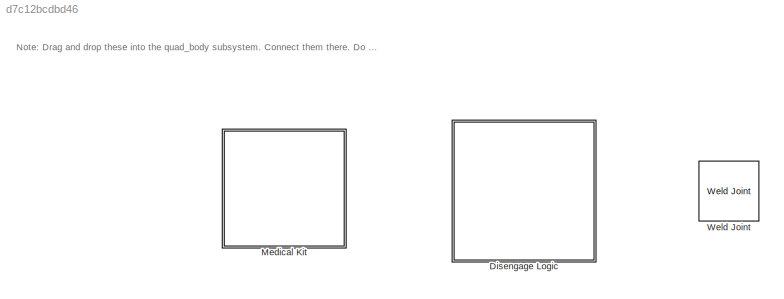
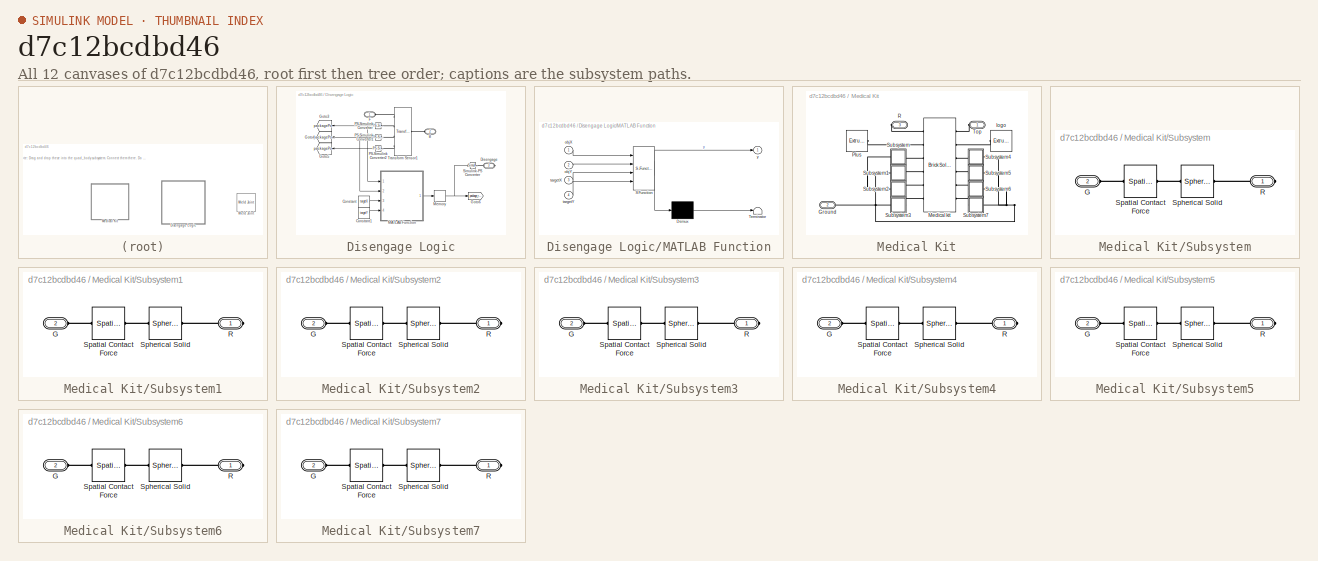
[diagram: thumbnail index - all 12 canvases of the model, root first then tree order]
MODEL slx_d7c12bcdbd46
KIND library
CONFIG AbsTol = auto
CONFIG EnableMultiTasking = off
CONFIG FixedStep = auto
CONFIG MaxStep = auto
CONFIG MinStep = auto
CONFIG RelTol = 1e-3
CONFIG SampleTimeConstraint = Unconstrained
CONFIG SolverName = VariableStepAuto
CONFIG StartTime = 0.0
CONFIG StopTime = 10.0
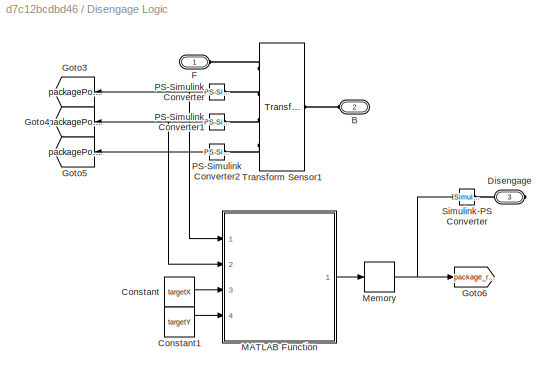
BLOCK [SubSystem] Disengage Logic
  Ports = [0, 0, 0, 0, 0, 2, 1]
  RequestExecContextInheritance = off
BLOCK [PMIOPort] Disengage Logic/B
  Port = 2
  Side = Left
BLOCK [Constant] Disengage Logic/Constant
  Value = targetX
BLOCK [Constant] Disengage Logic/Constant1
  Value = targetY
BLOCK [PMIOPort] Disengage Logic/Disengage
  Port = 3
  Side = Right
BLOCK [PMIOPort] Disengage Logic/F
  Side = Left
BLOCK [Goto] Disengage Logic/Goto3
  GotoTag = packagePoseX
  TagVisibility = global
BLOCK [Goto] Disengage Logic/Goto4
  GotoTag = packagePoseY
  TagVisibility = global
BLOCK [Goto] Disengage Logic/Goto5
  GotoTag = packagePoseZ
  TagVisibility = global
BLOCK [Goto] Disengage Logic/Goto6
  GotoTag = package_released
  NameLocation = top
  TagVisibility = global
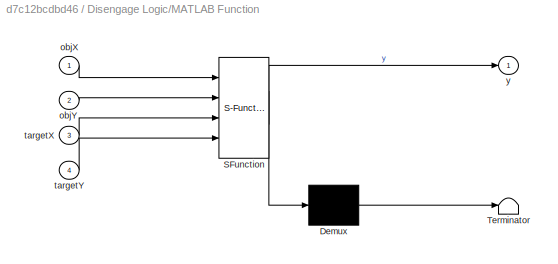
BLOCK [SubSystem] Disengage Logic/MATLAB Function
  ErrorFcn = Stateflow.Translate.translate
  PermitHierarchicalResolution = ExplicitOnly
  Ports = [4, 1]
  RequestExecContextInheritance = off
  SFBlockType = MATLAB Function
  TreatAsAtomicUnit = on
BLOCK [Demux] Disengage Logic/MATLAB Function/ Demux 
  Outputs = 1
  Ports = [1, 1]
BLOCK [S-Function] Disengage Logic/MATLAB Function/ SFunction 
  EnableBusSupport = on
  FunctionName = sf_sfun
  PortCounts = [4 2]
  Ports = [4, 2]
  SFcnIsStateOwnerBlock = off
  SFunctionDeploymentMode = off
  Tag = Stateflow S-Function 6
BLOCK [Terminator] Disengage Logic/MATLAB Function/ Terminator 
BLOCK [Inport] Disengage Logic/MATLAB Function/objX
BLOCK [Inport] Disengage Logic/MATLAB Function/objY
  Port = 2
BLOCK [Inport] Disengage Logic/MATLAB Function/targetX
  Port = 3
BLOCK [Inport] Disengage Logic/MATLAB Function/targetY
  Port = 4
BLOCK [Outport] Disengage Logic/MATLAB Function/y
BLOCK [Memory] Disengage Logic/Memory
BLOCK [Reference] Disengage Logic/PS-Simulink Converter  REF=nesl_utility/PS-Simulink
Converter
  Ports = [0, 1, 0, 0, 0, 1]
  SourceBlock = nesl_utility/PS-Simulink\nConverter
  SourceProductBaseCode = PW,SS
  SourceType = PS-Simulink\nConverter
BLOCK [Reference] Disengage Logic/PS-Simulink Converter1  REF=nesl_utility/PS-Simulink
Converter
  Ports = [0, 1, 0, 0, 0, 1]
  SourceBlock = nesl_utility/PS-Simulink\nConverter
  SourceProductBaseCode = PW,SS
  SourceType = PS-Simulink\nConverter
BLOCK [Reference] Disengage Logic/PS-Simulink Converter2  REF=nesl_utility/PS-Simulink
Converter
  Ports = [0, 1, 0, 0, 0, 1]
  SourceBlock = nesl_utility/PS-Simulink\nConverter
  SourceProductBaseCode = PW,SS
  SourceType = PS-Simulink\nConverter
BLOCK [Reference] Disengage Logic/Simulink-PS Converter  REF=nesl_utility/Simulink-PS
Converter
  Ports = [1, 0, 0, 0, 0, 0, 1]
  SourceBlock = nesl_utility/Simulink-PS\nConverter
  SourceProductBaseCode = PW,SS
  SourceType = Simulink-PS\nConverter
BLOCK [Reference] Disengage Logic/Transform Sensor1  REF=sm_lib/Frames and
Transforms/Transform
Sensor
  Ports = [0, 0, 0, 0, 0, 1, 4]
  SourceBlock = sm_lib/Frames and\nTransforms/Transform\nSensor
  SourceProductBaseCode = MS
  SourceType = Transform\nSensor
BLOCK [SubSystem] Medical Kit
  Ports = [0, 0, 0, 0, 0, 2, 1]
  RequestExecContextInheritance = off
BLOCK [PMIOPort] Medical Kit/Ground
  Port = 2
  Side = Left
BLOCK [Reference] Medical Kit/Medical kit  REF=sm_lib/Body Elements/Brick Solid
  NameLocation = top
  Ports = [0, 0, 0, 0, 0, 6, 6]
  SourceBlock = sm_lib/Body Elements/Brick Solid
  SourceProductBaseCode = MS
  SourceType = Brick Solid
BLOCK [Reference] Medical Kit/Plus  REF=sm_lib/Body Elements/Extruded Solid
  Ports = [0, 0, 0, 0, 0, 0, 1]
  SourceBlock = sm_lib/Body Elements/Extruded Solid
  SourceProductBaseCode = MS
  SourceType = Extruded Solid
BLOCK [PMIOPort] Medical Kit/R
  Port = 3
  Side = Right
BLOCK [SubSystem] Medical Kit/Subsystem
  Ports = [0, 0, 0, 0, 0, 1, 1]
  RequestExecContextInheritance = off
BLOCK [PMIOPort] Medical Kit/Subsystem/G
  Port = 2
  Side = Left
BLOCK [PMIOPort] Medical Kit/Subsystem/R
  Side = Right
BLOCK [Reference] Medical Kit/Subsystem/Spatial Contact Force  REF=sm_lib/Forces and
Torques/Spatial
Contact Force
  NameLocation = top
  Ports = [0, 0, 0, 0, 0, 1, 1]
  SourceBlock = sm_lib/Forces and\nTorques/Spatial\nContact Force
  SourceProductBaseCode = MS
  SourceType = Spatial\nContact Force
BLOCK [Reference] Medical Kit/Subsystem/Spherical Solid  REF=sm_lib/Body Elements/Spherical Solid
  Ports = [0, 0, 0, 0, 0, 1, 1]
  SourceBlock = sm_lib/Body Elements/Spherical Solid
  SourceProductBaseCode = MS
  SourceType = Spherical Solid
BLOCK [SubSystem] Medical Kit/Subsystem1
  Ports = [0, 0, 0, 0, 0, 1, 1]
  RequestExecContextInheritance = off
BLOCK [PMIOPort] Medical Kit/Subsystem1/G
  Port = 2
  Side = Left
BLOCK [PMIOPort] Medical Kit/Subsystem1/R
  Side = Right
BLOCK [Reference] Medical Kit/Subsystem1/Spatial Contact Force  REF=sm_lib/Forces and
Torques/Spatial
Contact Force
  NameLocation = top
  Ports = [0, 0, 0, 0, 0, 1, 1]
  SourceBlock = sm_lib/Forces and\nTorques/Spatial\nContact Force
  SourceProductBaseCode = MS
  SourceType = Spatial\nContact Force
BLOCK [Reference] Medical Kit/Subsystem1/Spherical Solid  REF=sm_lib/Body Elements/Spherical Solid
  Ports = [0, 0, 0, 0, 0, 1, 1]
  SourceBlock = sm_lib/Body Elements/Spherical Solid
  SourceProductBaseCode = MS
  SourceType = Spherical Solid
BLOCK [SubSystem] Medical Kit/Subsystem2
  Ports = [0, 0, 0, 0, 0, 1, 1]
  RequestExecContextInheritance = off
BLOCK [PMIOPort] Medical Kit/Subsystem2/G
  Port = 2
  Side = Left
BLOCK [PMIOPort] Medical Kit/Subsystem2/R
  Side = Right
BLOCK [Reference] Medical Kit/Subsystem2/Spatial Contact Force  REF=sm_lib/Forces and
Torques/Spatial
Contact Force
  NameLocation = top
  Ports = [0, 0, 0, 0, 0, 1, 1]
  SourceBlock = sm_lib/Forces and\nTorques/Spatial\nContact Force
  SourceProductBaseCode = MS
  SourceType = Spatial\nContact Force
BLOCK [Reference] Medical Kit/Subsystem2/Spherical Solid  REF=sm_lib/Body Elements/Spherical Solid
  Ports = [0, 0, 0, 0, 0, 1, 1]
  SourceBlock = sm_lib/Body Elements/Spherical Solid
  SourceProductBaseCode = MS
  SourceType = Spherical Solid
BLOCK [SubSystem] Medical Kit/Subsystem3
  Ports = [0, 0, 0, 0, 0, 1, 1]
  RequestExecContextInheritance = off
BLOCK [PMIOPort] Medical Kit/Subsystem3/G
  Port = 2
  Side = Left
BLOCK [PMIOPort] Medical Kit/Subsystem3/R
  Side = Right
BLOCK [Reference] Medical Kit/Subsystem3/Spatial Contact Force  REF=sm_lib/Forces and
Torques/Spatial
Contact Force
  NameLocation = top
  Ports = [0, 0, 0, 0, 0, 1, 1]
  SourceBlock = sm_lib/Forces and\nTorques/Spatial\nContact Force
  SourceProductBaseCode = MS
  SourceType = Spatial\nContact Force
BLOCK [Reference] Medical Kit/Subsystem3/Spherical Solid  REF=sm_lib/Body Elements/Spherical Solid
  Ports = [0, 0, 0, 0, 0, 1, 1]
  SourceBlock = sm_lib/Body Elements/Spherical Solid
  SourceProductBaseCode = MS
  SourceType = Spherical Solid
BLOCK [SubSystem] Medical Kit/Subsystem4
  Ports = [0, 0, 0, 0, 0, 1, 1]
  RequestExecContextInheritance = off
BLOCK [PMIOPort] Medical Kit/Subsystem4/G
  Port = 2
  Side = Left
BLOCK [PMIOPort] Medical Kit/Subsystem4/R
  Side = Right
BLOCK [Reference] Medical Kit/Subsystem4/Spatial Contact Force  REF=sm_lib/Forces and
Torques/Spatial
Contact Force
  NameLocation = top
  Ports = [0, 0, 0, 0, 0, 1, 1]
  SourceBlock = sm_lib/Forces and\nTorques/Spatial\nContact Force
  SourceProductBaseCode = MS
  SourceType = Spatial\nContact Force
BLOCK [Reference] Medical Kit/Subsystem4/Spherical Solid  REF=sm_lib/Body Elements/Spherical Solid
  Ports = [0, 0, 0, 0, 0, 1, 1]
  SourceBlock = sm_lib/Body Elements/Spherical Solid
  SourceProductBaseCode = MS
  SourceType = Spherical Solid
BLOCK [SubSystem] Medical Kit/Subsystem5
  Ports = [0, 0, 0, 0, 0, 1, 1]
  RequestExecContextInheritance = off
BLOCK [PMIOPort] Medical Kit/Subsystem5/G
  Port = 2
  Side = Left
BLOCK [PMIOPort] Medical Kit/Subsystem5/R
  Side = Right
BLOCK [Reference] Medical Kit/Subsystem5/Spatial Contact Force  REF=sm_lib/Forces and
Torques/Spatial
Contact Force
  NameLocation = top
  Ports = [0, 0, 0, 0, 0, 1, 1]
  SourceBlock = sm_lib/Forces and\nTorques/Spatial\nContact Force
  SourceProductBaseCode = MS
  SourceType = Spatial\nContact Force
BLOCK [Reference] Medical Kit/Subsystem5/Spherical Solid  REF=sm_lib/Body Elements/Spherical Solid
  Ports = [0, 0, 0, 0, 0, 1, 1]
  SourceBlock = sm_lib/Body Elements/Spherical Solid
  SourceProductBaseCode = MS
  SourceType = Spherical Solid
BLOCK [SubSystem] Medical Kit/Subsystem6
  Ports = [0, 0, 0, 0, 0, 1, 1]
  RequestExecContextInheritance = off
BLOCK [PMIOPort] Medical Kit/Subsystem6/G
  Port = 2
  Side = Left
BLOCK [PMIOPort] Medical Kit/Subsystem6/R
  Side = Right
BLOCK [Reference] Medical Kit/Subsystem6/Spatial Contact Force  REF=sm_lib/Forces and
Torques/Spatial
Contact Force
  NameLocation = top
  Ports = [0, 0, 0, 0, 0, 1, 1]
  SourceBlock = sm_lib/Forces and\nTorques/Spatial\nContact Force
  SourceProductBaseCode = MS
  SourceType = Spatial\nContact Force
BLOCK [Reference] Medical Kit/Subsystem6/Spherical Solid  REF=sm_lib/Body Elements/Spherical Solid
  Ports = [0, 0, 0, 0, 0, 1, 1]
  SourceBlock = sm_lib/Body Elements/Spherical Solid
  SourceProductBaseCode = MS
  SourceType = Spherical Solid
BLOCK [SubSystem] Medical Kit/Subsystem7
  Ports = [0, 0, 0, 0, 0, 1, 1]
  RequestExecContextInheritance = off
BLOCK [PMIOPort] Medical Kit/Subsystem7/G
  Port = 2
  Side = Left
BLOCK [PMIOPort] Medical Kit/Subsystem7/R
  Side = Right
BLOCK [Reference] Medical Kit/Subsystem7/Spatial Contact Force  REF=sm_lib/Forces and
Torques/Spatial
Contact Force
  NameLocation = top
  Ports = [0, 0, 0, 0, 0, 1, 1]
  SourceBlock = sm_lib/Forces and\nTorques/Spatial\nContact Force
  SourceProductBaseCode = MS
  SourceType = Spatial\nContact Force
BLOCK [Reference] Medical Kit/Subsystem7/Spherical Solid  REF=sm_lib/Body Elements/Spherical Solid
  Ports = [0, 0, 0, 0, 0, 1, 1]
  SourceBlock = sm_lib/Body Elements/Spherical Solid
  SourceProductBaseCode = MS
  SourceType = Spherical Solid
BLOCK [PMIOPort] Medical Kit/Top
  Side = Left
BLOCK [Reference] Medical Kit/logo  REF=sm_lib/Body Elements/Extruded Solid
  NameLocation = top
  Ports = [0, 0, 0, 0, 0, 0, 1]
  SourceBlock = sm_lib/Body Elements/Extruded Solid
  SourceProductBaseCode = MS
  SourceType = Extruded Solid
BLOCK [Reference] Weld Joint  REF=sm_lib/Joints/Weld Joint
  Ports = [0, 0, 0, 0, 0, 2, 1]
  SourceBlock = sm_lib/Joints/Weld Joint
  SourceProductBaseCode = MS
  SourceType = Weld Joint
ANNOTATION (root): Note: Drag and drop these into the quad_body subsystem. Connect them there. Do not attempt to connect them here.
LINE Disengage Logic/Constant1:1 -> Disengage Logic/MATLAB Function:4
LINE Disengage Logic/Constant:1 -> Disengage Logic/MATLAB Function:3
LINE Disengage Logic/MATLAB Function:1 -> Disengage Logic/Memory:1
NET Disengage Logic/Memory:1 -> Disengage Logic/Goto6:1, Disengage Logic/Simulink-PS Converter:1
NET Disengage Logic/PS-Simulink Converter1:1 -> Disengage Logic/Goto4:1, Disengage Logic/MATLAB Function:2
LINE Disengage Logic/PS-Simulink Converter2:1 -> Disengage Logic/Goto5:1
NET Disengage Logic/PS-Simulink Converter:1 -> Disengage Logic/Goto3:1, Disengage Logic/MATLAB Function:1
PLINE Disengage Logic/B:RConn1 -- Disengage Logic/Transform Sensor1:LConn1
PLINE Disengage Logic/Disengage:RConn1 -- Disengage Logic/Simulink-PS Converter:RConn1
PLINE Disengage Logic/F:RConn1 -- Disengage Logic/Transform Sensor1:RConn1
PLINE Disengage Logic/PS-Simulink Converter1:LConn1 -- Disengage Logic/Transform Sensor1:RConn3
PLINE Disengage Logic/PS-Simulink Converter2:LConn1 -- Disengage Logic/Transform Sensor1:RConn4
PLINE Disengage Logic/PS-Simulink Converter:LConn1 -- Disengage Logic/Transform Sensor1:RConn2
PNET net1: Medical Kit/Ground:RConn1 -- Medical Kit/Subsystem1:LConn1 -- Medical Kit/Subsystem2:LConn1 -- Medical Kit/Subsystem3:LConn1 -- Medical Kit/Subsystem4:LConn1 -- Medical Kit/Subsystem5:LConn1 -- Medical Kit/Subsystem6:LConn1 -- Medical Kit/Subsystem7:LConn1 -- Medical Kit/Subsystem:LConn1
PLINE Medical Kit/Medical kit:LConn1 -- Medical Kit/Top:RConn1
PLINE Medical Kit/Medical kit:LConn2 -- Medical Kit/logo:RConn1
PLINE Medical Kit/Medical kit:LConn3 -- Medical Kit/Subsystem4:RConn1
PLINE Medical Kit/Medical kit:LConn4 -- Medical Kit/Subsystem5:RConn1
PLINE Medical Kit/Medical kit:LConn5 -- Medical Kit/Subsystem6:RConn1
PLINE Medical Kit/Medical kit:LConn6 -- Medical Kit/Subsystem7:RConn1
PLINE Medical Kit/Medical kit:RConn1 -- Medical Kit/R:RConn1
PLINE Medical Kit/Medical kit:RConn2 -- Medical Kit/Plus:RConn1
PLINE Medical Kit/Medical kit:RConn3 -- Medical Kit/Subsystem:RConn1
PLINE Medical Kit/Medical kit:RConn4 -- Medical Kit/Subsystem1:RConn1
PLINE Medical Kit/Medical kit:RConn5 -- Medical Kit/Subsystem2:RConn1
PLINE Medical Kit/Medical kit:RConn6 -- Medical Kit/Subsystem3:RConn1
PLINE Medical Kit/Subsystem/G:RConn1 -- Medical Kit/Subsystem/Spatial Contact Force:RConn1
PLINE Medical Kit/Subsystem/R:RConn1 -- Medical Kit/Subsystem/Spherical Solid:RConn1
PLINE Medical Kit/Subsystem/Spatial Contact Force:LConn1 -- Medical Kit/Subsystem/Spherical Solid:LConn1
PLINE Medical Kit/Subsystem1/G:RConn1 -- Medical Kit/Subsystem1/Spatial Contact Force:RConn1
PLINE Medical Kit/Subsystem1/R:RConn1 -- Medical Kit/Subsystem1/Spherical Solid:RConn1
PLINE Medical Kit/Subsystem1/Spatial Contact Force:LConn1 -- Medical Kit/Subsystem1/Spherical Solid:LConn1
PLINE Medical Kit/Subsystem2/G:RConn1 -- Medical Kit/Subsystem2/Spatial Contact Force:RConn1
PLINE Medical Kit/Subsystem2/R:RConn1 -- Medical Kit/Subsystem2/Spherical Solid:RConn1
PLINE Medical Kit/Subsystem2/Spatial Contact Force:LConn1 -- Medical Kit/Subsystem2/Spherical Solid:LConn1
PLINE Medical Kit/Subsystem3/G:RConn1 -- Medical Kit/Subsystem3/Spatial Contact Force:RConn1
PLINE Medical Kit/Subsystem3/R:RConn1 -- Medical Kit/Subsystem3/Spherical Solid:RConn1
PLINE Medical Kit/Subsystem3/Spatial Contact Force:LConn1 -- Medical Kit/Subsystem3/Spherical Solid:LConn1
PLINE Medical Kit/Subsystem4/G:RConn1 -- Medical Kit/Subsystem4/Spatial Contact Force:RConn1
PLINE Medical Kit/Subsystem4/R:RConn1 -- Medical Kit/Subsystem4/Spherical Solid:RConn1
PLINE Medical Kit/Subsystem4/Spatial Contact Force:LConn1 -- Medical Kit/Subsystem4/Spherical Solid:LConn1
PLINE Medical Kit/Subsystem5/G:RConn1 -- Medical Kit/Subsystem5/Spatial Contact Force:RConn1
PLINE Medical Kit/Subsystem5/R:RConn1 -- Medical Kit/Subsystem5/Spherical Solid:RConn1
PLINE Medical Kit/Subsystem5/Spatial Contact Force:LConn1 -- Medical Kit/Subsystem5/Spherical Solid:LConn1
PLINE Medical Kit/Subsystem6/G:RConn1 -- Medical Kit/Subsystem6/Spatial Contact Force:RConn1
PLINE Medical Kit/Subsystem6/R:RConn1 -- Medical Kit/Subsystem6/Spherical Solid:RConn1
PLINE Medical Kit/Subsystem6/Spatial Contact Force:LConn1 -- Medical Kit/Subsystem6/Spherical Solid:LConn1
PLINE Medical Kit/Subsystem7/G:RConn1 -- Medical Kit/Subsystem7/Spatial Contact Force:RConn1
PLINE Medical Kit/Subsystem7/R:RConn1 -- Medical Kit/Subsystem7/Spherical Solid:RConn1
PLINE Medical Kit/Subsystem7/Spatial Contact Force:LConn1 -- Medical Kit/Subsystem7/Spherical Solid:LConn1
note: NET lines group one-source signal fan-out (src -> all destinations, sorted); 1:1 wires keep LINE; PNET lines group multi-terminal physical nets as a canonical sorted terminal list (undirected conserving connections); 2-terminal nets keep the pairwise PLINE form
CHART Disengage Logic/MATLAB Function states=1 transitions=1
  STATE_LABEL 'eML_blk_kernel()'
  STATE_LABEL 'SCRIPT:\nfunction y = fcn(objX, objY, targetX, targetY)\n\npersistent releaseObj;\n\nif sqrt((objX - targetX)^2 + (objY - targetY)^2) < 0.25  && isempty(releaseObj)\n    y = -1;\n    releaseObj = 1;\nelseif ~isempty(releaseObj)\n    y = -1;\nelse\n    y = 0;\nend\nend\n'
CHART  states=0 transitions=0
